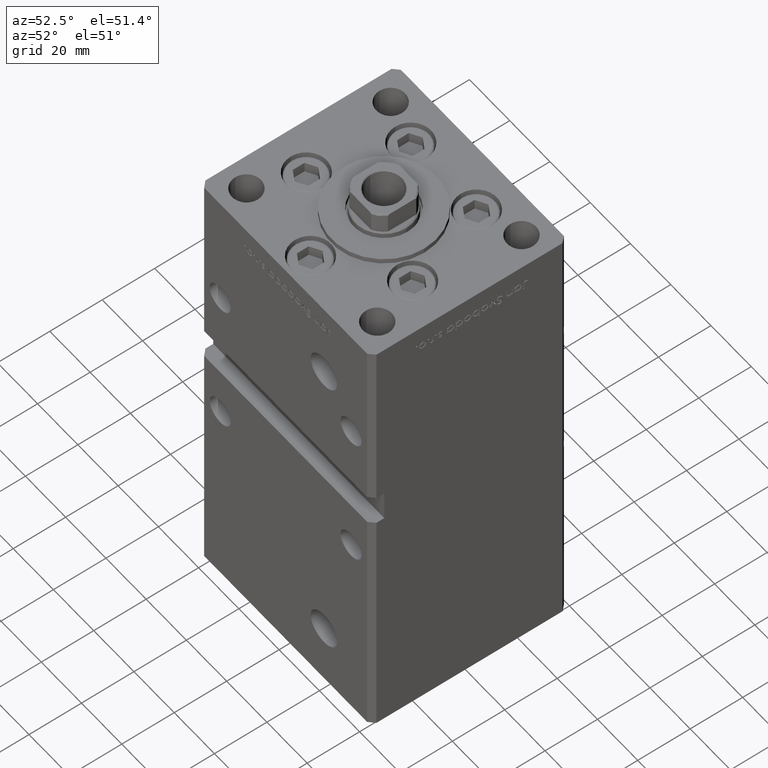
[diagram: clean part render]
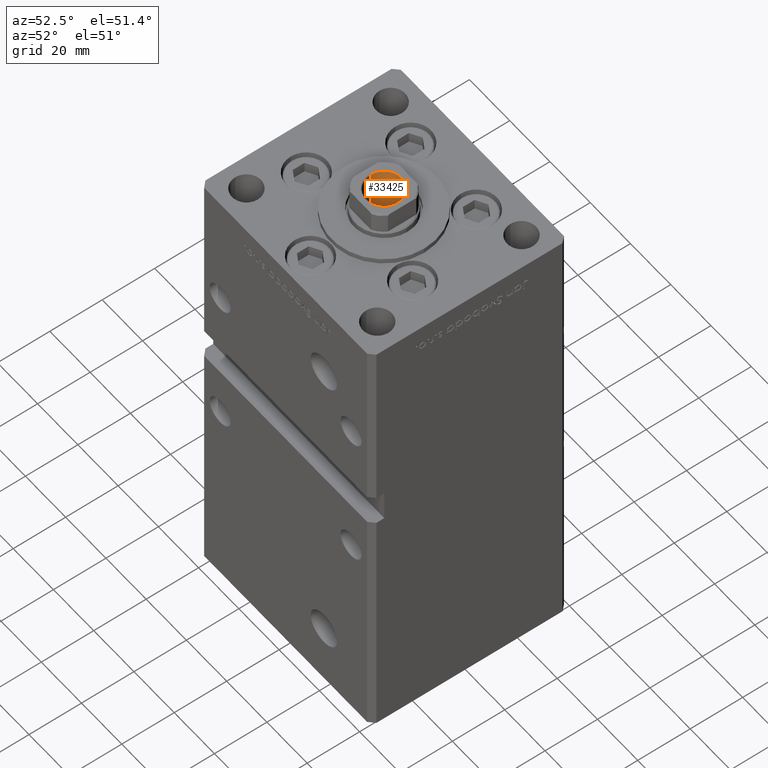
[diagram: same view with one face highlighted and labeled with its STEP entity id]
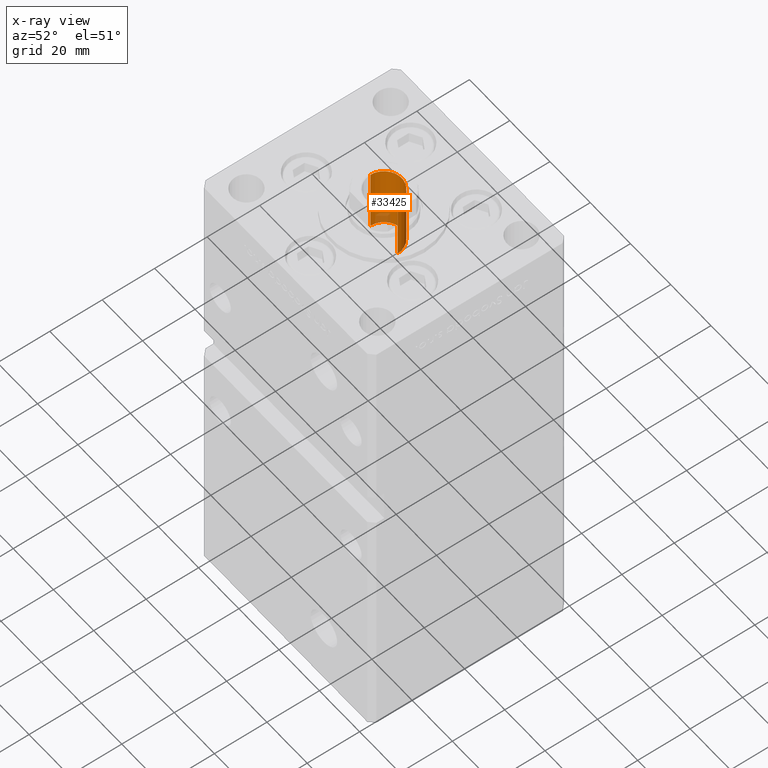
[diagram: x-ray of the same camera — body ghosted, the highlighted face saturated]
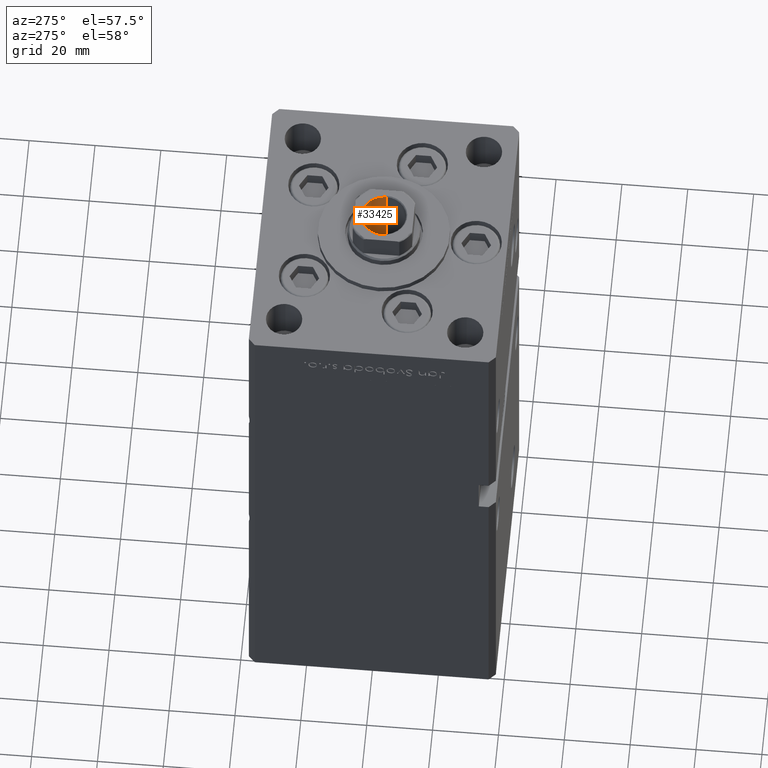
[diagram: same view with one face highlighted and labeled with its STEP entity id]
A machine part, auxiliary view. The second image highlights one B-rep face of the part: STEP entity #33425.
The next image is the same camera in x-ray: the body ghosted, the highlighted face saturated — about 7% of this face is hidden behind the body in this view.
A second angle (auxiliary view) of the same face is appended — the face is thin or edge-on in the first view.
In plain terms, the highlighted cylindrical surface (edge-blend (fillet) strip) has radius 6.75 mm, axis along (0, 0, 1).
Its self-contained STEP definition (entity closure, byte-faithful):
#1900 = VERTEX_POINT ( 'NONE', #53199 ) ;
#5874 = AXIS2_PLACEMENT_3D ( 'NONE', #28154, #32460, #16324 ) ;
#6223 = EDGE_CURVE ( 'NONE', #1900, #17656, #12657, .T. ) ;
#7123 = CARTESIAN_POINT ( 'NONE',  ( 6.749999999999995559, 0.000000000000000000, 155.4499999999999886 ) ) ;
#8056 = CARTESIAN_POINT ( 'NONE',  ( 0.000000000000000000, 0.000000000000000000, 155.4499999999999886 ) ) ;
#8283 = VERTEX_POINT ( 'NONE', #53180 ) ;
#12618 = DIRECTION ( 'NONE',  ( 0.000000000000000000, 0.000000000000000000, 1.000000000000000000 ) ) ;
#12657 = LINE ( 'NONE', #29318, #29738 ) ;
#12686 = DIRECTION ( 'NONE',  ( 1.000000000000000000, 0.000000000000000000, 0.000000000000000000 ) ) ;
#16324 = DIRECTION ( 'NONE',  ( 1.000000000000000000, 0.000000000000000000, 0.000000000000000000 ) ) ;
#17656 = VERTEX_POINT ( 'NONE', #7123 ) ;
#19661 = CARTESIAN_POINT ( 'NONE',  ( -6.749999999999995559, 8.266365894244628417E-16, 155.7500000000000000 ) ) ;
#21220 = DIRECTION ( 'NONE',  ( 1.000000000000000000, 0.000000000000000000, 0.000000000000000000 ) ) ;
#22334 = CIRCLE ( 'NONE', #48100, 6.749999999999995559 ) ;
#23438 = LINE ( 'NONE', #19661, #23951 ) ;
#23951 = VECTOR ( 'NONE', #28250, 1000.000000000000000 ) ;
#24080 = VERTEX_POINT ( 'NONE', #31744 ) ;
#27755 = EDGE_LOOP ( 'NONE', ( #43845, #46023, #50353, #52774 ) ) ;
#28154 = CARTESIAN_POINT ( 'NONE',  ( 0.000000000000000000, 0.000000000000000000, 130.7500000000000000 ) ) ;
#28250 = DIRECTION ( 'NONE',  ( -0.000000000000000000, -0.000000000000000000, 1.000000000000000000 ) ) ;
#28554 = EDGE_CURVE ( 'NONE', #1900, #24080, #30773, .T. ) ;
#29072 = CYLINDRICAL_SURFACE ( 'NONE', #52408, 6.749999999999995559 ) ;
#29318 = CARTESIAN_POINT ( 'NONE',  ( 6.749999999999995559, 0.000000000000000000, 155.7500000000000000 ) ) ;
#29463 = EDGE_CURVE ( 'NONE', #24080, #8283, #23438, .T. ) ;
#29574 = DIRECTION ( 'NONE',  ( -0.000000000000000000, -0.000000000000000000, 1.000000000000000000 ) ) ;
#29738 = VECTOR ( 'NONE', #29574, 1000.000000000000000 ) ;
#30773 = CIRCLE ( 'NONE', #5874, 6.749999999999993783 ) ;
#31744 = CARTESIAN_POINT ( 'NONE',  ( -6.749999999999993783, 8.266365894244626445E-16, 130.7500000000000000 ) ) ;
#32460 = DIRECTION ( 'NONE',  ( -0.000000000000000000, -0.000000000000000000, 1.000000000000000000 ) ) ;
#32868 = EDGE_CURVE ( 'NONE', #17656, #8283, #22334, .T. ) ;
#33425 = ADVANCED_FACE ( 'NONE', ( #33911 ), #29072, .F. ) ;
#33911 = FACE_OUTER_BOUND ( 'NONE', #27755, .T. ) ;
#37691 = DIRECTION ( 'NONE',  ( -0.000000000000000000, -0.000000000000000000, 1.000000000000000000 ) ) ;
#43845 = ORIENTED_EDGE ( 'NONE', *, *, #29463, .F. ) ;
#46023 = ORIENTED_EDGE ( 'NONE', *, *, #28554, .F. ) ;
#48100 = AXIS2_PLACEMENT_3D ( 'NONE', #8056, #12618, #21220 ) ;
#50322 = CARTESIAN_POINT ( 'NONE',  ( 0.000000000000000000, 0.000000000000000000, 155.7500000000000000 ) ) ;
#50353 = ORIENTED_EDGE ( 'NONE', *, *, #6223, .T. ) ;
#52408 = AXIS2_PLACEMENT_3D ( 'NONE', #50322, #37691, #12686 ) ;
#52774 = ORIENTED_EDGE ( 'NONE', *, *, #32868, .T. ) ;
#53180 = CARTESIAN_POINT ( 'NONE',  ( -6.749999999999995559, 8.266365894244628417E-16, 155.4499999999999886 ) ) ;
#53199 = CARTESIAN_POINT ( 'NONE',  ( 6.749999999999993783, 0.000000000000000000, 130.7500000000000000 ) ) ;